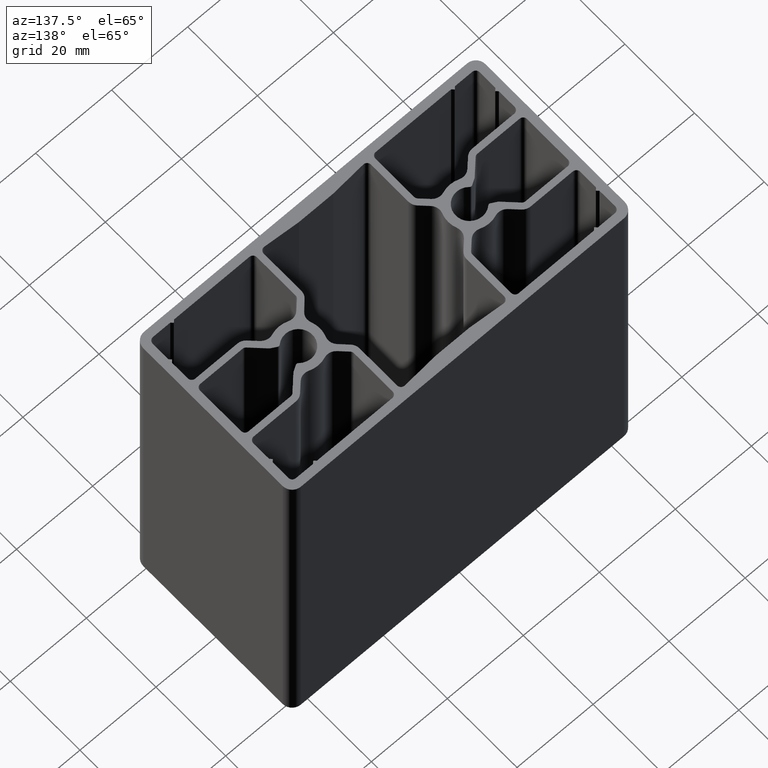
[diagram: clean part render]
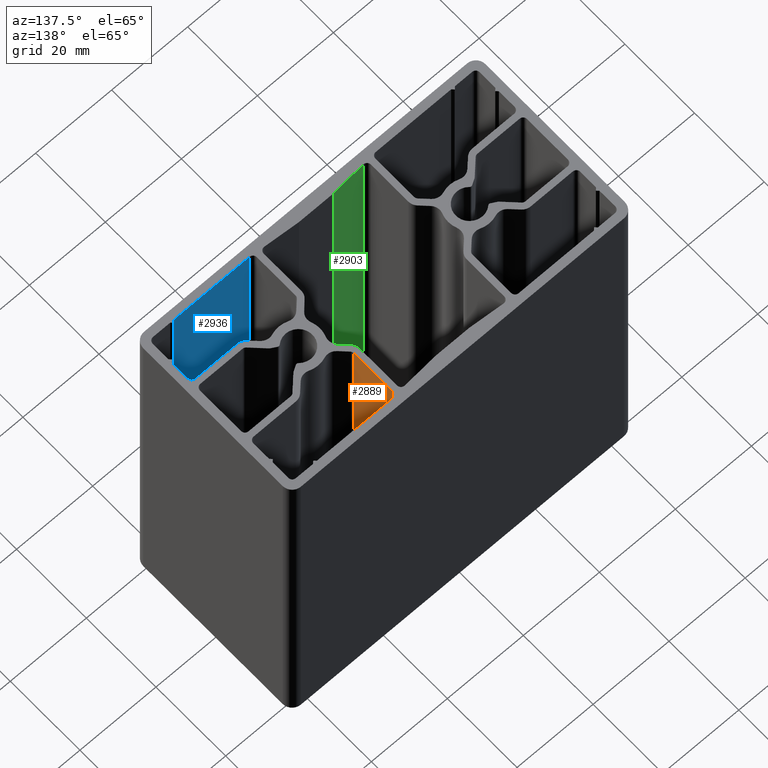
[diagram: same view with three faces highlighted in distinct colors, each labeled with its STEP entity id]
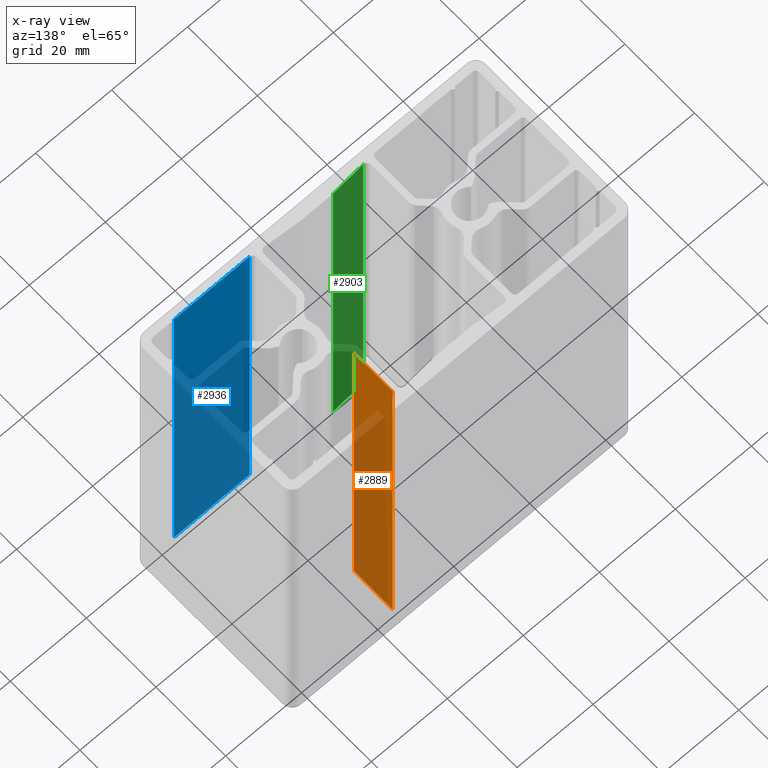
[diagram: x-ray of the same camera — body ghosted, the three highlighted faces saturated]
A machine part, auxiliary view with three faces highlighted in distinct colors.
The next image is the same camera in x-ray (body ghosted, the three faces saturated) — at least one of them is partly hidden behind the body in this view.
Their STEP definitions:

[orange] entity #2889 — the highlighted planar face has unit normal (-1, -0, 0).
#249=FACE_OUTER_BOUND('',#399,.T.);
#399=EDGE_LOOP('',(#1967,#1968,#1969,#1970));
#581=LINE('',#4292,#889);
#582=LINE('',#4295,#890);
#583=LINE('',#4297,#891);
#584=LINE('',#4298,#892);
#889=VECTOR('',#3407,100.);
#890=VECTOR('',#3410,11.1251262658471);
#891=VECTOR('',#3411,11.1251262658471);
#892=VECTOR('',#3412,100.);
#1195=VERTEX_POINT('',#4288);
#1196=VERTEX_POINT('',#4290);
#1197=VERTEX_POINT('',#4294);
#1198=VERTEX_POINT('',#4296);
#1507=EDGE_CURVE('',#1196,#1195,#581,.T.);
#1508=EDGE_CURVE('',#1195,#1197,#582,.T.);
#1509=EDGE_CURVE('',#1198,#1196,#583,.T.);
#1510=EDGE_CURVE('',#1198,#1197,#584,.T.);
#1967=ORIENTED_EDGE('',*,*,#1508,.F.);
#1968=ORIENTED_EDGE('',*,*,#1507,.F.);
#1969=ORIENTED_EDGE('',*,*,#1509,.F.);
#1970=ORIENTED_EDGE('',*,*,#1510,.T.);
#2800=PLANE('',#3055);
#2889=ADVANCED_FACE('',(#249),#2800,.F.);
#3055=AXIS2_PLACEMENT_3D('',#4293,#3408,#3409);
#3407=DIRECTION('',(0.,0.,1.));
#3408=DIRECTION('center_axis',(-1.,-9.97941954181157E-16,0.));
#3409=DIRECTION('ref_axis',(1.06581410364015E-15,-1.,0.));
#3410=DIRECTION('',(-9.97941954181157E-16,1.,0.));
#3411=DIRECTION('',(9.97941954181157E-16,-1.,0.));
#3412=DIRECTION('',(0.,0.,1.));
#4288=CARTESIAN_POINT('',(15.6,8.37487373415292,100.));
#4290=CARTESIAN_POINT('',(15.6,8.37487373415292,0.));
#4292=CARTESIAN_POINT('',(15.6,8.37487373415292,0.));
#4293=CARTESIAN_POINT('Origin',(15.6,19.5,0.));
#4294=CARTESIAN_POINT('',(15.6,19.5,100.));
#4295=CARTESIAN_POINT('',(15.6,9.75000000000001,100.));
#4296=CARTESIAN_POINT('',(15.6,19.5,0.));
#4297=CARTESIAN_POINT('',(15.6,9.75000000000001,0.));
#4298=CARTESIAN_POINT('',(15.6,19.5,0.));

[blue] entity #2936 — the highlighted planar face has unit normal (-0, -1, 0).
#296=FACE_OUTER_BOUND('',#446,.T.);
#446=EDGE_LOOP('',(#2155,#2156,#2157,#2158));
#678=LINE('',#4573,#986);
#679=LINE('',#4577,#987);
#680=LINE('',#4579,#988);
#681=LINE('',#4580,#989);
#986=VECTOR('',#3684,100.);
#987=VECTOR('',#3689,19.85);
#988=VECTOR('',#3690,100.);
#989=VECTOR('',#3691,19.85);
#1289=VERTEX_POINT('',#4570);
#1290=VERTEX_POINT('',#4572);
#1291=VERTEX_POINT('',#4576);
#1292=VERTEX_POINT('',#4578);
#1647=EDGE_CURVE('',#1290,#1289,#678,.T.);
#1649=EDGE_CURVE('',#1291,#1289,#679,.T.);
#1650=EDGE_CURVE('',#1292,#1291,#680,.T.);
#1651=EDGE_CURVE('',#1290,#1292,#681,.T.);
#2155=ORIENTED_EDGE('',*,*,#1649,.F.);
#2156=ORIENTED_EDGE('',*,*,#1650,.F.);
#2157=ORIENTED_EDGE('',*,*,#1651,.F.);
#2158=ORIENTED_EDGE('',*,*,#1647,.T.);
#2825=PLANE('',#3146);
#2936=ADVANCED_FACE('',(#296),#2825,.F.);
#3146=AXIS2_PLACEMENT_3D('',#4575,#3687,#3688);
#3684=DIRECTION('',(0.,0.,1.));
#3687=DIRECTION('center_axis',(-2.23722523853936E-16,-1.,0.));
#3688=DIRECTION('ref_axis',(1.,-3.5527136788005E-16,0.));
#3689=DIRECTION('',(-1.,2.23722523853936E-16,0.));
#3690=DIRECTION('',(0.,0.,1.));
#3691=DIRECTION('',(1.,-2.23722523853936E-16,0.));
#4570=CARTESIAN_POINT('',(16.6,-20.5,100.));
#4572=CARTESIAN_POINT('',(16.6,-20.5,0.));
#4573=CARTESIAN_POINT('',(16.6,-20.5,0.));
#4575=CARTESIAN_POINT('Origin',(16.6,-20.5,0.));
#4576=CARTESIAN_POINT('',(36.45,-20.5,100.));
#4577=CARTESIAN_POINT('',(8.30000000000001,-20.5,100.));
#4578=CARTESIAN_POINT('',(36.45,-20.5,0.));
#4579=CARTESIAN_POINT('',(36.45,-20.5,0.));
#4580=CARTESIAN_POINT('',(8.30000000000001,-20.5,0.));

[green] entity #2903 — the highlighted planar face has unit normal (0.0767, -0.9971, 0).
#263=FACE_OUTER_BOUND('',#413,.T.);
#413=EDGE_LOOP('',(#2023,#2024,#2025,#2026));
#611=LINE('',#4376,#919);
#612=LINE('',#4379,#920);
#613=LINE('',#4381,#921);
#614=LINE('',#4382,#922);
#919=VECTOR('',#3489,100.);
#920=VECTOR('',#3492,8.54847544709787);
#921=VECTOR('',#3493,8.54847544709787);
#922=VECTOR('',#3494,100.);
#1223=VERTEX_POINT('',#4372);
#1224=VERTEX_POINT('',#4374);
#1225=VERTEX_POINT('',#4378);
#1226=VERTEX_POINT('',#4380);
#1549=EDGE_CURVE('',#1224,#1223,#611,.T.);
#1550=EDGE_CURVE('',#1223,#1225,#612,.T.);
#1551=EDGE_CURVE('',#1226,#1224,#613,.T.);
#1552=EDGE_CURVE('',#1226,#1225,#614,.T.);
#2023=ORIENTED_EDGE('',*,*,#1550,.F.);
#2024=ORIENTED_EDGE('',*,*,#1549,.F.);
#2025=ORIENTED_EDGE('',*,*,#1551,.F.);
#2026=ORIENTED_EDGE('',*,*,#1552,.T.);
#2808=PLANE('',#3081);
#2903=ADVANCED_FACE('',(#263),#2808,.F.);
#3081=AXIS2_PLACEMENT_3D('',#4377,#3490,#3491);
#3489=DIRECTION('',(0.,0.,1.));
#3490=DIRECTION('center_axis',(0.0767190281268188,-0.99705275222692,0.));
#3491=DIRECTION('ref_axis',(0.99705275222692,0.0767190281268189,0.));
#3492=DIRECTION('',(-0.99705275222692,-0.0767190281268188,0.));
#3493=DIRECTION('',(0.99705275222692,0.0767190281268188,0.));
#3494=DIRECTION('',(0.,0.,1.));
#4372=CARTESIAN_POINT('',(-4.5,-19.5,100.));
#4374=CARTESIAN_POINT('',(-4.5,-19.5,0.));
#4376=CARTESIAN_POINT('',(-4.5,-19.5,0.));
#4377=CARTESIAN_POINT('Origin',(-13.0232809718732,-20.1558307282673,0.));
#4378=CARTESIAN_POINT('',(-13.0232809718732,-20.1558307282673,100.));
#4379=CARTESIAN_POINT('',(-5.77907760492453,-19.5984196578661,100.));
#4380=CARTESIAN_POINT('',(-13.0232809718732,-20.1558307282673,0.));
#4381=CARTESIAN_POINT('',(-5.77907760492453,-19.5984196578661,0.));
#4382=CARTESIAN_POINT('',(-13.0232809718732,-20.1558307282673,0.));